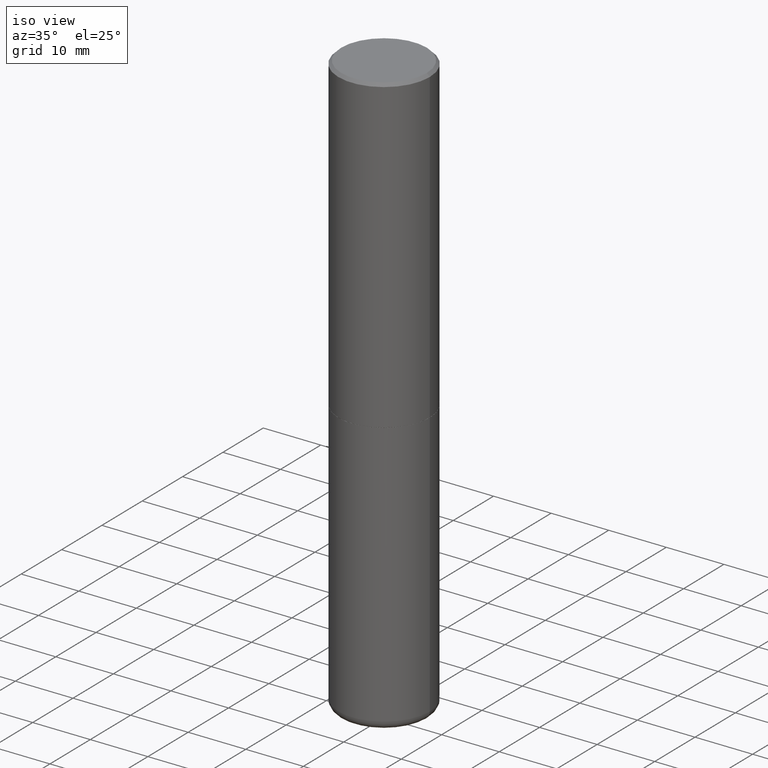
[diagram: clean part render]
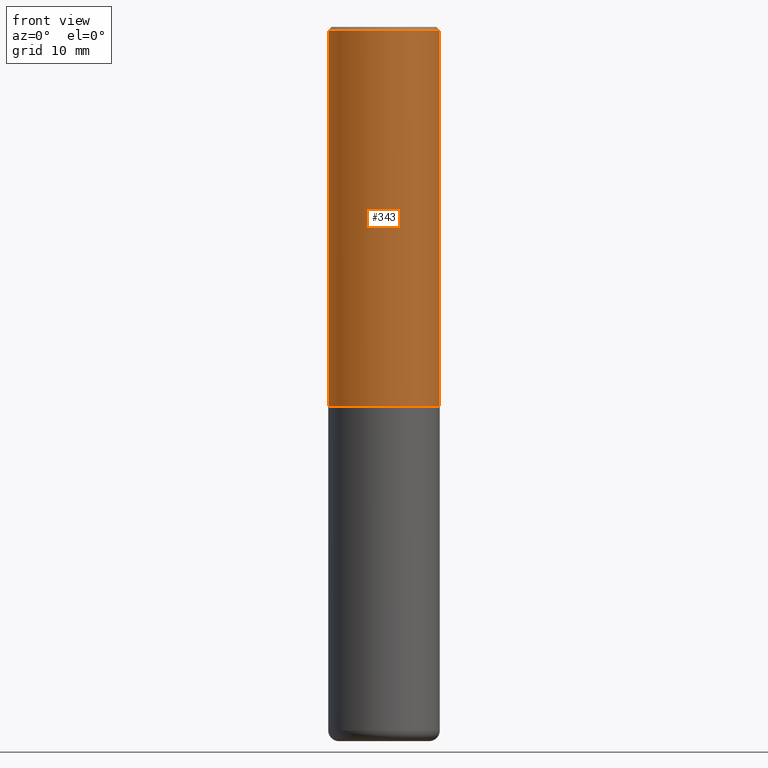
[diagram: tour spotlight — one face highlighted and labeled with its STEP entity id]
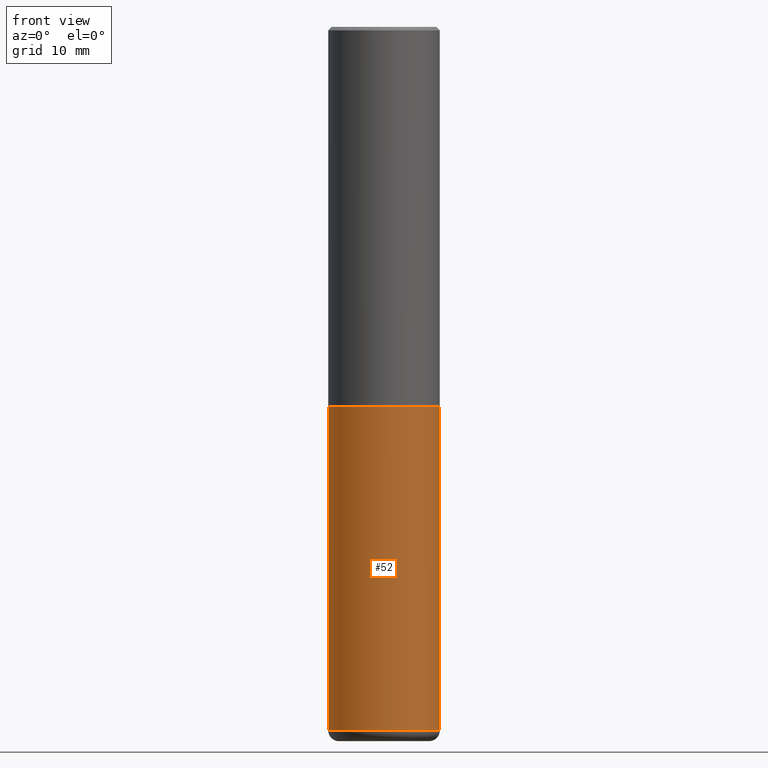
[diagram: tour spotlight — one face highlighted and labeled with its STEP entity id]
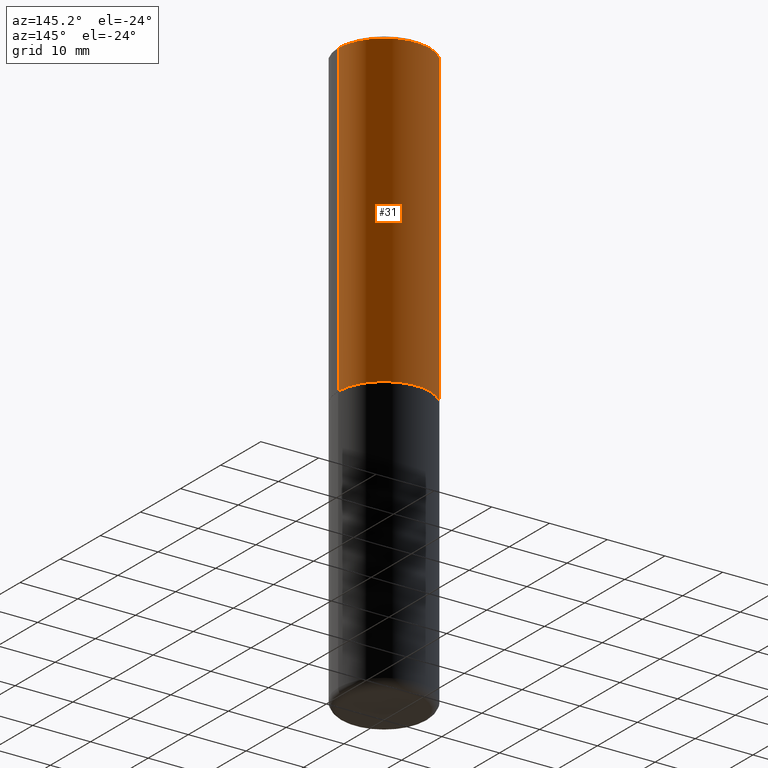
[diagram: tour spotlight — one face highlighted and labeled with its STEP entity id]
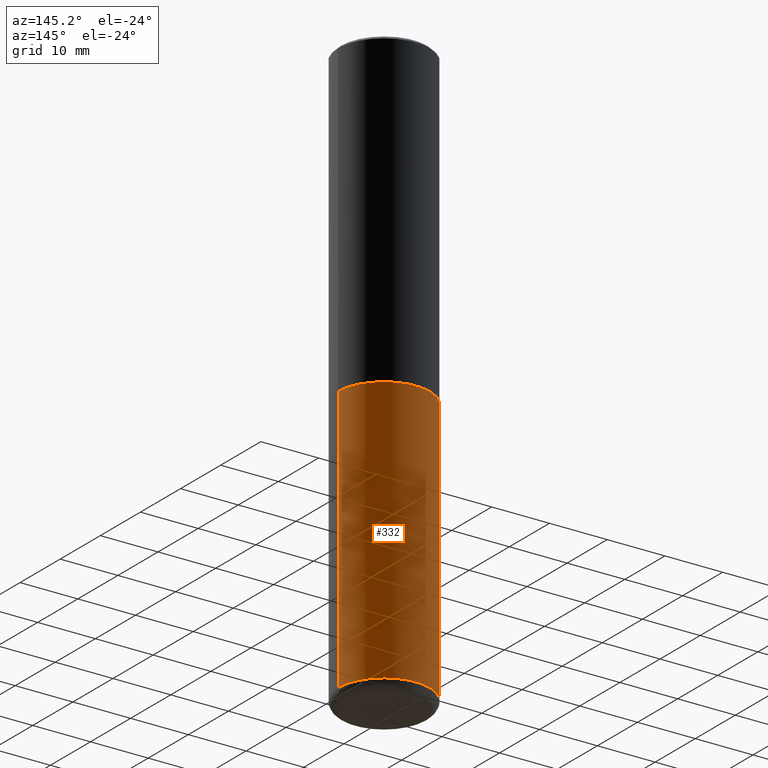
[diagram: tour spotlight — one face highlighted and labeled with its STEP entity id]
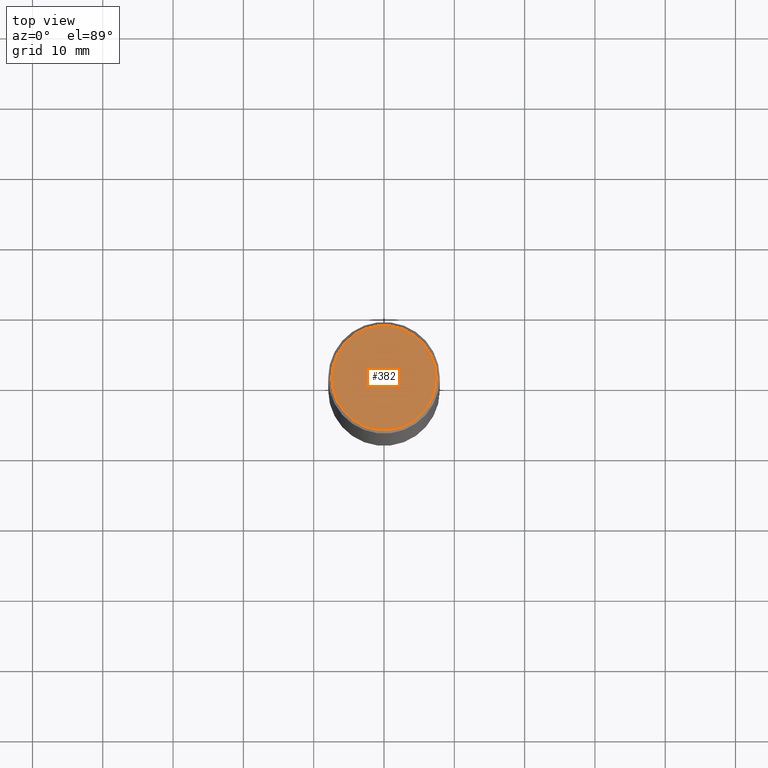
[diagram: tour spotlight — one face highlighted and labeled with its STEP entity id]
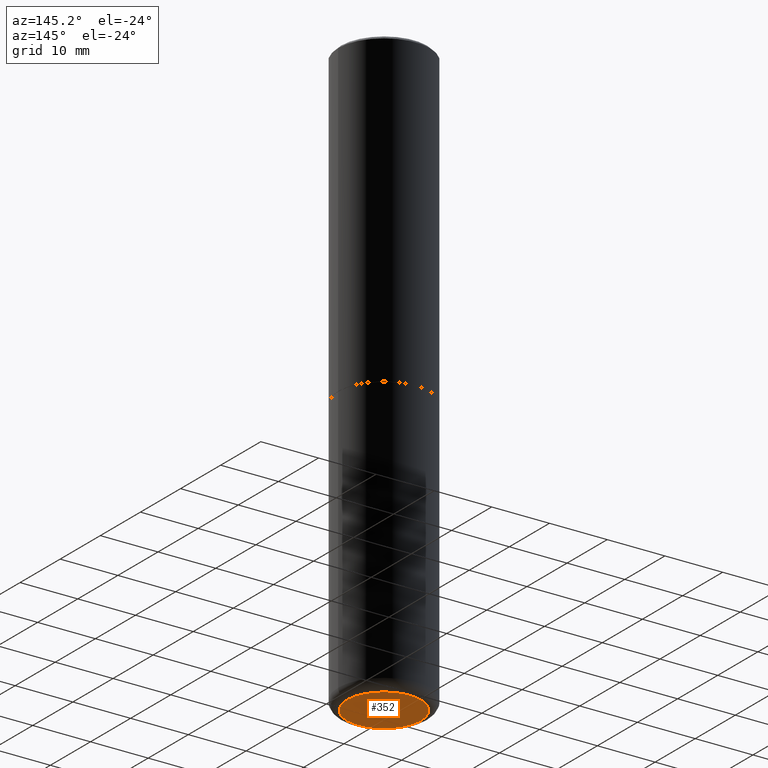
[diagram: tour spotlight — one face highlighted and labeled with its STEP entity id]
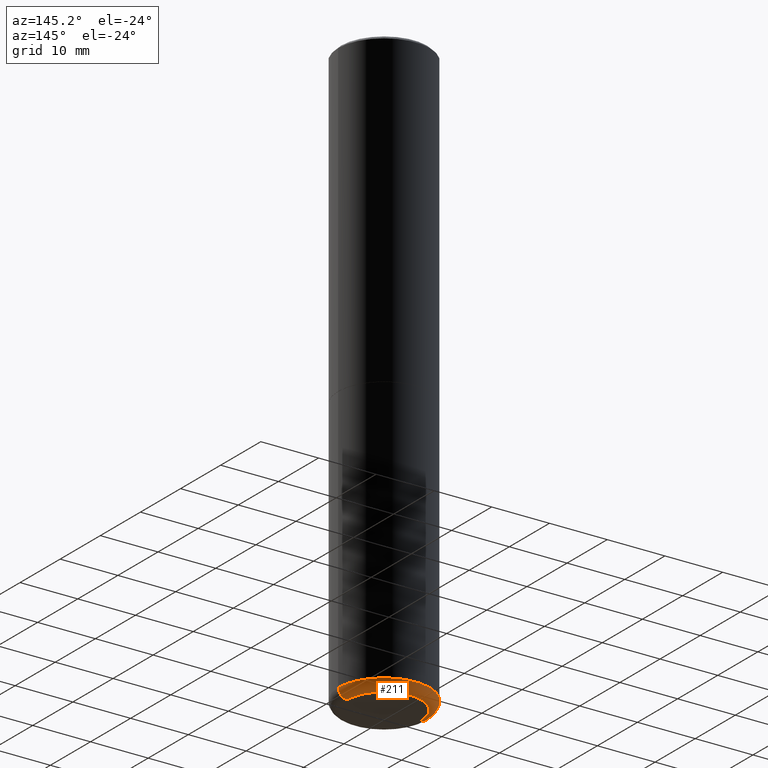
[diagram: tour spotlight — one face highlighted and labeled with its STEP entity id]
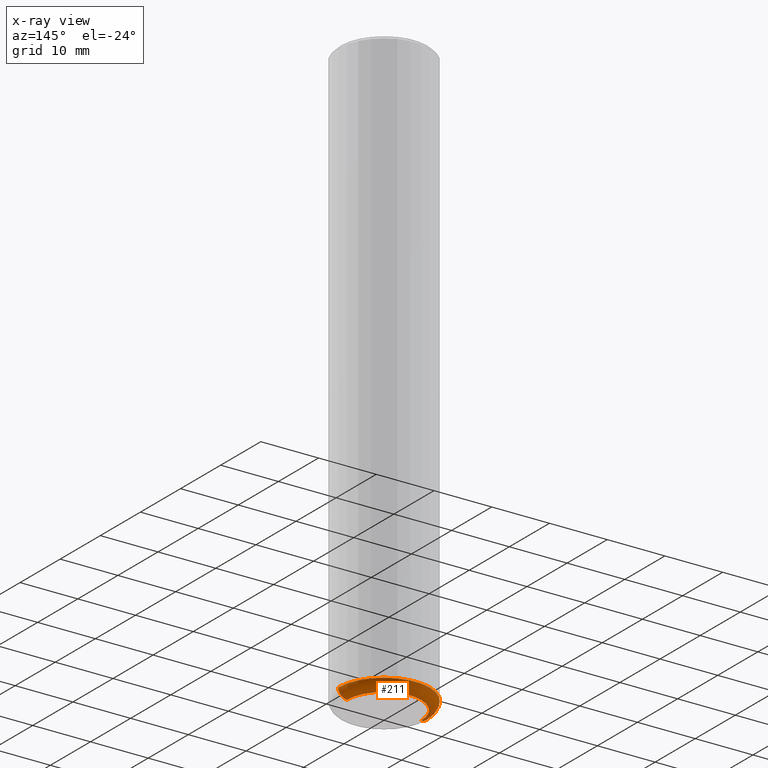
[diagram: x-ray of the same camera — body ghosted, this tour face saturated]
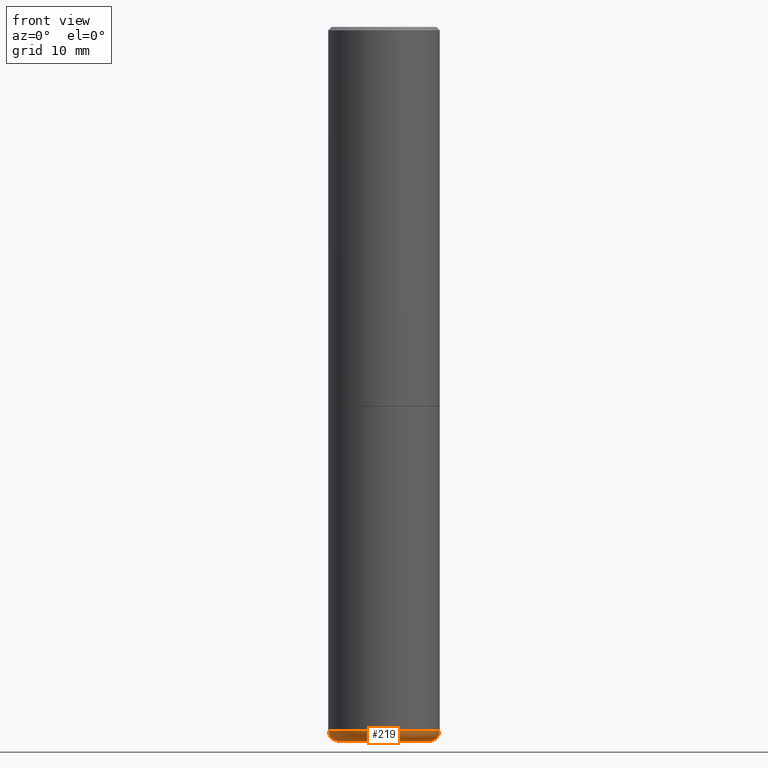
[diagram: tour spotlight — one face highlighted and labeled with its STEP entity id]
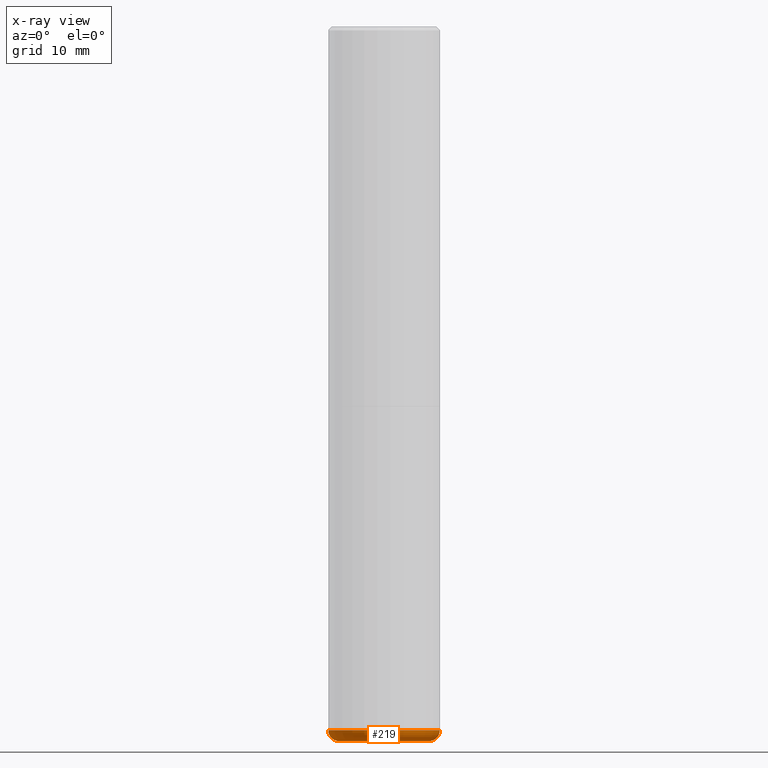
[diagram: x-ray of the same camera — body ghosted, this tour face saturated]
A machine part: a face-by-face anatomy tour. The part has 14 B-rep faces; the first image is the clean iso view, then the 8 largest visible faces are spotlighted one at a time (largest first), each with its STEP entity span.

Face 1 — front view, entity #343. In plain terms, the highlighted cylindrical surface (partial cylindrical patch) has radius 7.9375 mm, axis along (-0, 0, 1).
Definition (entity closure, byte-faithful):
#1 = EDGE_CURVE ( 'NONE', #283, #264, #153, .T. ) ;
#49 = CARTESIAN_POINT ( 'NONE',  ( 4.890937612370289799E-31, -6.982962677686315028E-17, -0.02000000000000006981 ) ) ;
#51 = DIRECTION ( 'NONE',  ( -2.445468806185136597E-29, 3.491481338843145583E-15, 1.000000000000000000 ) ) ;
#54 = CARTESIAN_POINT ( 'NONE',  ( 0.3125000000000002776, -9.598082200479802119E-15, -2.123999999999999666 ) ) ;
#55 = CARTESIAN_POINT ( 'NONE',  ( 5.194175744337229665E-29, -7.415906363702840616E-15, -2.123999999999999666 ) ) ;
#63 = DIRECTION ( 'NONE',  ( -2.445468806185136597E-29, 3.491481338843145583E-15, 1.000000000000000000 ) ) ;
#75 = AXIS2_PLACEMENT_3D ( 'NONE', #203, #51, #142 ) ;
#77 = AXIS2_PLACEMENT_3D ( 'NONE', #55, #63, #251 ) ;
#86 = VECTOR ( 'NONE', #385, 39.37007874015748143 ) ;
#88 = DIRECTION ( 'NONE',  ( 1.000000000000000000, -6.982962677686266711E-15, 0.000000000000000000 ) ) ;
#90 = CARTESIAN_POINT ( 'NONE',  ( 0.3125000000000001665, -2.182175836776959530E-15, 1.523805242436230636E-29 ) ) ;
#96 = VECTOR ( 'NONE', #306, 39.37007874015748143 ) ;
#117 = ORIENTED_EDGE ( 'NONE', *, *, #286, .F. ) ;
#121 = LINE ( 'NONE', #152, #86 ) ;
#142 = DIRECTION ( 'NONE',  ( 1.000000000000000000, -6.982962677686266711E-15, 4.876176775795935232E-29 ) ) ;
#152 = CARTESIAN_POINT ( 'NONE',  ( -0.3125000000000001665, 2.220446049250314264E-15, -1.537167215704658792E-29 ) ) ;
#153 = CIRCLE ( 'NONE', #77, 0.3125000000000002776 ) ;
#167 = VERTEX_POINT ( 'NONE', #260 ) ;
#181 = ORIENTED_EDGE ( 'NONE', *, *, #1, .T. ) ;
#203 = CARTESIAN_POINT ( 'NONE',  ( 0.000000000000000000, 0.000000000000000000, 0.000000000000000000 ) ) ;
#251 = DIRECTION ( 'NONE',  ( 1.000000000000000000, -6.982962677686269077E-15, 0.000000000000000000 ) ) ;
#252 = CIRCLE ( 'NONE', #265, 0.3125000000000000000 ) ;
#260 = CARTESIAN_POINT ( 'NONE',  ( 0.3125000000000000000, -2.213735251080466911E-15, -0.02000000000000006981 ) ) ;
#264 = VERTEX_POINT ( 'NONE', #54 ) ;
#265 = AXIS2_PLACEMENT_3D ( 'NONE', #49, #289, #88 ) ;
#269 = VERTEX_POINT ( 'NONE', #292 ) ;
#283 = VERTEX_POINT ( 'NONE', #305 ) ;
#286 = EDGE_CURVE ( 'NONE', #269, #167, #252, .T. ) ;
#289 = DIRECTION ( 'NONE',  ( -2.445468806185136597E-29, 3.491481338843145583E-15, 1.000000000000000000 ) ) ;
#292 = CARTESIAN_POINT ( 'NONE',  ( -0.3125000000000000000, 2.112346210000095443E-15, -0.02000000000000006981 ) ) ;
#305 = CARTESIAN_POINT ( 'NONE',  ( -0.3125000000000002776, -1.522421945989534932E-15, -2.123999999999999666 ) ) ;
#306 = DIRECTION ( 'NONE',  ( -2.445468806185136877E-29, 3.491481338843145188E-15, 1.000000000000000000 ) ) ;
#325 = EDGE_LOOP ( 'NONE', ( #395, #181, #408, #117 ) ) ;
#339 = FACE_OUTER_BOUND ( 'NONE', #325, .T. ) ;
#343 = ADVANCED_FACE ( 'NONE', ( #339 ), #367, .T. ) ;
#363 = EDGE_CURVE ( 'NONE', #283, #269, #121, .T. ) ;
#367 = CYLINDRICAL_SURFACE ( 'NONE', #75, 0.3125000000000001665 ) ;
#385 = DIRECTION ( 'NONE',  ( -2.445468806185136877E-29, 3.491481338843145188E-15, 1.000000000000000000 ) ) ;
#395 = ORIENTED_EDGE ( 'NONE', *, *, #363, .F. ) ;
#407 = LINE ( 'NONE', #90, #96 ) ;
#408 = ORIENTED_EDGE ( 'NONE', *, *, #416, .T. ) ;
#416 = EDGE_CURVE ( 'NONE', #264, #167, #407, .T. ) ;

Face 2 — front view, entity #52. In plain terms, the highlighted cylindrical surface (partial cylindrical patch) has radius 7.9375 mm, axis along (-0, 0, 1).
Definition (entity closure, byte-faithful):
#12 = ORIENTED_EDGE ( 'NONE', *, *, #35, .T. ) ;
#15 = VERTEX_POINT ( 'NONE', #119 ) ;
#17 = DIRECTION ( 'NONE',  ( 1.000000000000000000, -6.982962677686266711E-15, 4.876176775795936353E-29 ) ) ;
#24 = AXIS2_PLACEMENT_3D ( 'NONE', #225, #101, #371 ) ;
#30 = AXIS2_PLACEMENT_3D ( 'NONE', #58, #93, #378 ) ;
#34 = EDGE_CURVE ( 'NONE', #327, #224, #393, .T. ) ;
#35 = EDGE_CURVE ( 'NONE', #15, #224, #208, .T. ) ;
#39 = VERTEX_POINT ( 'NONE', #157 ) ;
#52 = ADVANCED_FACE ( 'NONE', ( #110 ), #102, .T. ) ;
#58 = CARTESIAN_POINT ( 'NONE',  ( 5.196621213143415268E-29, -7.419397845041683624E-15, -2.125000000000000000 ) ) ;
#62 = CARTESIAN_POINT ( 'NONE',  ( 0.3125000000000000000, -2.182175836776958347E-15, 1.523805242436230075E-29 ) ) ;
#70 = DIRECTION ( 'NONE',  ( -2.445468806185136877E-29, 3.491481338843145188E-15, 1.000000000000000000 ) ) ;
#89 = DIRECTION ( 'NONE',  ( -2.445468806185136877E-29, 3.491481338843145188E-15, 1.000000000000000000 ) ) ;
#93 = DIRECTION ( 'NONE',  ( -2.445468806185136597E-29, 3.491481338843145583E-15, 1.000000000000000000 ) ) ;
#101 = DIRECTION ( 'NONE',  ( -2.445468806185136597E-29, 3.491481338843145583E-15, 1.000000000000000000 ) ) ;
#102 = CYLINDRICAL_SURFACE ( 'NONE', #404, 0.3125000000000000000 ) ;
#110 = FACE_OUTER_BOUND ( 'NONE', #362, .T. ) ;
#119 = CARTESIAN_POINT ( 'NONE',  ( 0.3125000000000001665, -1.593861231181895394E-14, -3.939999999999999947 ) ) ;
#157 = CARTESIAN_POINT ( 'NONE',  ( -0.3125000000000001665, -1.153599042579167936E-14, -3.939999999999999947 ) ) ;
#163 = CARTESIAN_POINT ( 'NONE',  ( -0.3125000000000000000, 2.220446049250313081E-15, -1.537167215704658232E-29 ) ) ;
#176 = LINE ( 'NONE', #163, #387 ) ;
#194 = CIRCLE ( 'NONE', #24, 0.3125000000000000000 ) ;
#201 = CARTESIAN_POINT ( 'NONE',  ( 0.3125000000000000000, -9.601573681818641971E-15, -2.125000000000000000 ) ) ;
#207 = ORIENTED_EDGE ( 'NONE', *, *, #254, .T. ) ;
#208 = LINE ( 'NONE', #62, #257 ) ;
#224 = VERTEX_POINT ( 'NONE', #201 ) ;
#225 = CARTESIAN_POINT ( 'NONE',  ( 9.635147096369438236E-29, -1.375643647504199401E-14, -3.939999999999999947 ) ) ;
#254 = EDGE_CURVE ( 'NONE', #39, #15, #194, .T. ) ;
#257 = VECTOR ( 'NONE', #70, 39.37007874015748143 ) ;
#273 = EDGE_CURVE ( 'NONE', #39, #327, #176, .T. ) ;
#296 = ORIENTED_EDGE ( 'NONE', *, *, #34, .F. ) ;
#308 = CARTESIAN_POINT ( 'NONE',  ( -0.3125000000000000000, -8.367471110791524949E-15, -2.125000000000000000 ) ) ;
#322 = CARTESIAN_POINT ( 'NONE',  ( 0.000000000000000000, 0.000000000000000000, 0.000000000000000000 ) ) ;
#327 = VERTEX_POINT ( 'NONE', #308 ) ;
#353 = DIRECTION ( 'NONE',  ( -2.445468806185136597E-29, 3.491481338843145583E-15, 1.000000000000000000 ) ) ;
#362 = EDGE_LOOP ( 'NONE', ( #401, #207, #12, #296 ) ) ;
#371 = DIRECTION ( 'NONE',  ( 1.000000000000000000, -6.982962677686269077E-15, 0.000000000000000000 ) ) ;
#378 = DIRECTION ( 'NONE',  ( 1.000000000000000000, -6.982962677686269077E-15, 0.000000000000000000 ) ) ;
#387 = VECTOR ( 'NONE', #89, 39.37007874015748143 ) ;
#393 = CIRCLE ( 'NONE', #30, 0.3125000000000000000 ) ;
#401 = ORIENTED_EDGE ( 'NONE', *, *, #273, .F. ) ;
#404 = AXIS2_PLACEMENT_3D ( 'NONE', #322, #353, #17 ) ;

Face 3 — auxiliary view, entity #31. In plain terms, the highlighted cylindrical surface (partial cylindrical patch) has radius 7.9375 mm, axis along (-0, 0, 1).
Definition (entity closure, byte-faithful):
#23 = FACE_OUTER_BOUND ( 'NONE', #43, .T. ) ;
#29 = CIRCLE ( 'NONE', #179, 0.3125000000000000000 ) ;
#31 = ADVANCED_FACE ( 'NONE', ( #23 ), #178, .T. ) ;
#43 = EDGE_LOOP ( 'NONE', ( #348, #197, #304, #168 ) ) ;
#54 = CARTESIAN_POINT ( 'NONE',  ( 0.3125000000000002776, -9.598082200479802119E-15, -2.123999999999999666 ) ) ;
#57 = DIRECTION ( 'NONE',  ( 1.000000000000000000, -6.982962677686266711E-15, 0.000000000000000000 ) ) ;
#86 = VECTOR ( 'NONE', #385, 39.37007874015748143 ) ;
#90 = CARTESIAN_POINT ( 'NONE',  ( 0.3125000000000001665, -2.182175836776959530E-15, 1.523805242436230636E-29 ) ) ;
#95 = CARTESIAN_POINT ( 'NONE',  ( 5.194175744337229665E-29, -7.415906363702840616E-15, -2.123999999999999666 ) ) ;
#96 = VECTOR ( 'NONE', #306, 39.37007874015748143 ) ;
#121 = LINE ( 'NONE', #152, #86 ) ;
#152 = CARTESIAN_POINT ( 'NONE',  ( -0.3125000000000001665, 2.220446049250314264E-15, -1.537167215704658792E-29 ) ) ;
#167 = VERTEX_POINT ( 'NONE', #260 ) ;
#168 = ORIENTED_EDGE ( 'NONE', *, *, #416, .F. ) ;
#178 = CYLINDRICAL_SURFACE ( 'NONE', #415, 0.3125000000000001665 ) ;
#179 = AXIS2_PLACEMENT_3D ( 'NONE', #414, #342, #57 ) ;
#192 = DIRECTION ( 'NONE',  ( 1.000000000000000000, -6.982962677686269077E-15, 0.000000000000000000 ) ) ;
#197 = ORIENTED_EDGE ( 'NONE', *, *, #363, .T. ) ;
#204 = EDGE_CURVE ( 'NONE', #264, #283, #284, .T. ) ;
#245 = DIRECTION ( 'NONE',  ( -2.445468806185136597E-29, 3.491481338843145583E-15, 1.000000000000000000 ) ) ;
#260 = CARTESIAN_POINT ( 'NONE',  ( 0.3125000000000000000, -2.213735251080466911E-15, -0.02000000000000006981 ) ) ;
#264 = VERTEX_POINT ( 'NONE', #54 ) ;
#269 = VERTEX_POINT ( 'NONE', #292 ) ;
#283 = VERTEX_POINT ( 'NONE', #305 ) ;
#284 = CIRCLE ( 'NONE', #402, 0.3125000000000002776 ) ;
#292 = CARTESIAN_POINT ( 'NONE',  ( -0.3125000000000000000, 2.112346210000095443E-15, -0.02000000000000006981 ) ) ;
#304 = ORIENTED_EDGE ( 'NONE', *, *, #315, .F. ) ;
#305 = CARTESIAN_POINT ( 'NONE',  ( -0.3125000000000002776, -1.522421945989534932E-15, -2.123999999999999666 ) ) ;
#306 = DIRECTION ( 'NONE',  ( -2.445468806185136877E-29, 3.491481338843145188E-15, 1.000000000000000000 ) ) ;
#315 = EDGE_CURVE ( 'NONE', #167, #269, #29, .T. ) ;
#321 = DIRECTION ( 'NONE',  ( -2.445468806185136597E-29, 3.491481338843145583E-15, 1.000000000000000000 ) ) ;
#342 = DIRECTION ( 'NONE',  ( -2.445468806185136597E-29, 3.491481338843145583E-15, 1.000000000000000000 ) ) ;
#344 = DIRECTION ( 'NONE',  ( 1.000000000000000000, -6.982962677686266711E-15, 4.876176775795935232E-29 ) ) ;
#348 = ORIENTED_EDGE ( 'NONE', *, *, #204, .T. ) ;
#363 = EDGE_CURVE ( 'NONE', #283, #269, #121, .T. ) ;
#381 = CARTESIAN_POINT ( 'NONE',  ( 0.000000000000000000, 0.000000000000000000, 0.000000000000000000 ) ) ;
#385 = DIRECTION ( 'NONE',  ( -2.445468806185136877E-29, 3.491481338843145188E-15, 1.000000000000000000 ) ) ;
#402 = AXIS2_PLACEMENT_3D ( 'NONE', #95, #321, #192 ) ;
#407 = LINE ( 'NONE', #90, #96 ) ;
#414 = CARTESIAN_POINT ( 'NONE',  ( 4.890937612370289799E-31, -6.982962677686315028E-17, -0.02000000000000006981 ) ) ;
#415 = AXIS2_PLACEMENT_3D ( 'NONE', #381, #245, #344 ) ;
#416 = EDGE_CURVE ( 'NONE', #264, #167, #407, .T. ) ;

Face 4 — auxiliary view, entity #332. In plain terms, the highlighted cylindrical surface (partial cylindrical patch) has radius 7.9375 mm, axis along (-0, 0, 1).
Definition (entity closure, byte-faithful):
#6 = AXIS2_PLACEMENT_3D ( 'NONE', #221, #360, #166 ) ;
#15 = VERTEX_POINT ( 'NONE', #119 ) ;
#35 = EDGE_CURVE ( 'NONE', #15, #224, #208, .T. ) ;
#39 = VERTEX_POINT ( 'NONE', #157 ) ;
#46 = EDGE_CURVE ( 'NONE', #224, #327, #312, .T. ) ;
#62 = CARTESIAN_POINT ( 'NONE',  ( 0.3125000000000000000, -2.182175836776958347E-15, 1.523805242436230075E-29 ) ) ;
#70 = DIRECTION ( 'NONE',  ( -2.445468806185136877E-29, 3.491481338843145188E-15, 1.000000000000000000 ) ) ;
#79 = EDGE_LOOP ( 'NONE', ( #85, #293, #198, #122 ) ) ;
#85 = ORIENTED_EDGE ( 'NONE', *, *, #309, .T. ) ;
#89 = DIRECTION ( 'NONE',  ( -2.445468806185136877E-29, 3.491481338843145188E-15, 1.000000000000000000 ) ) ;
#119 = CARTESIAN_POINT ( 'NONE',  ( 0.3125000000000001665, -1.593861231181895394E-14, -3.939999999999999947 ) ) ;
#122 = ORIENTED_EDGE ( 'NONE', *, *, #35, .F. ) ;
#127 = AXIS2_PLACEMENT_3D ( 'NONE', #210, #232, #379 ) ;
#157 = CARTESIAN_POINT ( 'NONE',  ( -0.3125000000000001665, -1.153599042579167936E-14, -3.939999999999999947 ) ) ;
#163 = CARTESIAN_POINT ( 'NONE',  ( -0.3125000000000000000, 2.220446049250313081E-15, -1.537167215704658232E-29 ) ) ;
#166 = DIRECTION ( 'NONE',  ( 1.000000000000000000, -6.982962677686269077E-15, 0.000000000000000000 ) ) ;
#176 = LINE ( 'NONE', #163, #387 ) ;
#198 = ORIENTED_EDGE ( 'NONE', *, *, #46, .F. ) ;
#201 = CARTESIAN_POINT ( 'NONE',  ( 0.3125000000000000000, -9.601573681818641971E-15, -2.125000000000000000 ) ) ;
#208 = LINE ( 'NONE', #62, #257 ) ;
#210 = CARTESIAN_POINT ( 'NONE',  ( 0.000000000000000000, 0.000000000000000000, 0.000000000000000000 ) ) ;
#221 = CARTESIAN_POINT ( 'NONE',  ( 5.196621213143415268E-29, -7.419397845041683624E-15, -2.125000000000000000 ) ) ;
#224 = VERTEX_POINT ( 'NONE', #201 ) ;
#232 = DIRECTION ( 'NONE',  ( -2.445468806185136597E-29, 3.491481338843145583E-15, 1.000000000000000000 ) ) ;
#247 = FACE_OUTER_BOUND ( 'NONE', #79, .T. ) ;
#257 = VECTOR ( 'NONE', #70, 39.37007874015748143 ) ;
#261 = CARTESIAN_POINT ( 'NONE',  ( 9.635147096369438236E-29, -1.375643647504199401E-14, -3.939999999999999947 ) ) ;
#270 = CYLINDRICAL_SURFACE ( 'NONE', #127, 0.3125000000000000000 ) ;
#273 = EDGE_CURVE ( 'NONE', #39, #327, #176, .T. ) ;
#274 = CIRCLE ( 'NONE', #380, 0.3125000000000000000 ) ;
#275 = DIRECTION ( 'NONE',  ( 1.000000000000000000, -6.982962677686269077E-15, 0.000000000000000000 ) ) ;
#293 = ORIENTED_EDGE ( 'NONE', *, *, #273, .T. ) ;
#308 = CARTESIAN_POINT ( 'NONE',  ( -0.3125000000000000000, -8.367471110791524949E-15, -2.125000000000000000 ) ) ;
#309 = EDGE_CURVE ( 'NONE', #15, #39, #274, .T. ) ;
#312 = CIRCLE ( 'NONE', #6, 0.3125000000000000000 ) ;
#327 = VERTEX_POINT ( 'NONE', #308 ) ;
#332 = ADVANCED_FACE ( 'NONE', ( #247 ), #270, .T. ) ;
#340 = DIRECTION ( 'NONE',  ( -2.445468806185136597E-29, 3.491481338843145583E-15, 1.000000000000000000 ) ) ;
#360 = DIRECTION ( 'NONE',  ( -2.445468806185136597E-29, 3.491481338843145583E-15, 1.000000000000000000 ) ) ;
#379 = DIRECTION ( 'NONE',  ( 1.000000000000000000, -6.982962677686266711E-15, 4.876176775795936353E-29 ) ) ;
#380 = AXIS2_PLACEMENT_3D ( 'NONE', #261, #340, #275 ) ;
#387 = VECTOR ( 'NONE', #89, 39.37007874015748143 ) ;

Face 5 — top view, entity #382. In plain terms, the highlighted planar face has unit normal (0, -0, -1).
Definition (entity closure, byte-faithful):
#9 = EDGE_LOOP ( 'NONE', ( #99, #191 ) ) ;
#13 = CARTESIAN_POINT ( 'NONE',  ( -0.2925000000000002043, 2.077431396611664583E-15, -2.006200870347337854E-16 ) ) ;
#48 = DIRECTION ( 'NONE',  ( 1.000000000000000000, -6.982962677686266711E-15, 4.873475059489872853E-29 ) ) ;
#73 = VERTEX_POINT ( 'NONE', #13 ) ;
#82 = PLANE ( 'NONE',  #156 ) ;
#84 = CARTESIAN_POINT ( 'NONE',  ( 4.906101647375534649E-45, -7.004612900788104277E-31, -2.006200870347193887E-16 ) ) ;
#97 = DIRECTION ( 'NONE',  ( -2.445468806185136597E-29, 3.491481338843145583E-15, 1.000000000000000000 ) ) ;
#99 = ORIENTED_EDGE ( 'NONE', *, *, #155, .T. ) ;
#128 = CARTESIAN_POINT ( 'NONE',  ( 4.906101647375534649E-45, -7.004612900788104277E-31, -2.006200870347193887E-16 ) ) ;
#130 = EDGE_CURVE ( 'NONE', #173, #73, #154, .T. ) ;
#154 = CIRCLE ( 'NONE', #318, 0.2925000000000002043 ) ;
#155 = EDGE_CURVE ( 'NONE', #73, #173, #243, .T. ) ;
#156 = AXIS2_PLACEMENT_3D ( 'NONE', #278, #285, #244 ) ;
#173 = VERTEX_POINT ( 'NONE', #396 ) ;
#188 = DIRECTION ( 'NONE',  ( 1.000000000000000000, -6.982962677686266711E-15, 4.873475059489872853E-29 ) ) ;
#191 = ORIENTED_EDGE ( 'NONE', *, *, #130, .T. ) ;
#243 = CIRCLE ( 'NONE', #350, 0.2925000000000002043 ) ;
#244 = DIRECTION ( 'NONE',  ( -1.000000000000000000, 6.982962677686265922E-15, -4.876176775795935793E-29 ) ) ;
#278 = CARTESIAN_POINT ( 'NONE',  ( 2.042516583223234117E-15, 0.2925000000000002043, -1.121568335128980438E-15 ) ) ;
#280 = FACE_OUTER_BOUND ( 'NONE', #9, .T. ) ;
#285 = DIRECTION ( 'NONE',  ( 2.438088387897960049E-29, -3.491481338843145188E-15, -1.000000000000000000 ) ) ;
#290 = DIRECTION ( 'NONE',  ( -2.445468806185136597E-29, 3.491481338843145583E-15, 1.000000000000000000 ) ) ;
#318 = AXIS2_PLACEMENT_3D ( 'NONE', #128, #290, #48 ) ;
#350 = AXIS2_PLACEMENT_3D ( 'NONE', #84, #97, #188 ) ;
#382 = ADVANCED_FACE ( 'NONE', ( #280 ), #82, .F. ) ;
#396 = CARTESIAN_POINT ( 'NONE',  ( 0.2925000000000002043, -2.110215457714321114E-15, -2.006200870347048687E-16 ) ) ;

Face 6 — auxiliary view, entity #352. In plain terms, the highlighted planar face has unit normal (0, -0, -1).
Definition (entity closure, byte-faithful):
#10 = PLANE ( 'NONE',  #326 ) ;
#18 = ORIENTED_EDGE ( 'NONE', *, *, #323, .F. ) ;
#26 = VERTEX_POINT ( 'NONE', #307 ) ;
#33 = AXIS2_PLACEMENT_3D ( 'NONE', #356, #74, #195 ) ;
#36 = CARTESIAN_POINT ( 'NONE',  ( -0.2525000000000000022, -1.185389768668500455E-14, -4.000000000000000888 ) ) ;
#47 = CARTESIAN_POINT ( 'NONE',  ( 9.781875224740547508E-29, -1.396592535537258391E-14, -4.000000000000000888 ) ) ;
#74 = DIRECTION ( 'NONE',  ( -2.445468806185136597E-29, 3.491481338843145583E-15, 1.000000000000000000 ) ) ;
#115 = EDGE_LOOP ( 'NONE', ( #338, #18 ) ) ;
#180 = EDGE_CURVE ( 'NONE', #26, #259, #345, .T. ) ;
#193 = FACE_OUTER_BOUND ( 'NONE', #115, .T. ) ;
#195 = DIRECTION ( 'NONE',  ( 1.000000000000000000, -6.982962677686269866E-15, 0.000000000000000000 ) ) ;
#216 = DIRECTION ( 'NONE',  ( -1.000000000000000000, 6.982962677686265922E-15, -4.876176775795935793E-29 ) ) ;
#239 = DIRECTION ( 'NONE',  ( 1.000000000000000000, -6.982962677686269866E-15, 0.000000000000000000 ) ) ;
#259 = VERTEX_POINT ( 'NONE', #36 ) ;
#298 = CIRCLE ( 'NONE', #311, 0.2525000000000000022 ) ;
#307 = CARTESIAN_POINT ( 'NONE',  ( 0.2525000000000000022, -1.572912343148836720E-14, -4.000000000000000888 ) ) ;
#311 = AXIS2_PLACEMENT_3D ( 'NONE', #47, #376, #239 ) ;
#314 = DIRECTION ( 'NONE',  ( 2.438088387897960049E-29, -3.491481338843145188E-15, -1.000000000000000000 ) ) ;
#323 = EDGE_CURVE ( 'NONE', #259, #26, #298, .T. ) ;
#326 = AXIS2_PLACEMENT_3D ( 'NONE', #410, #314, #216 ) ;
#338 = ORIENTED_EDGE ( 'NONE', *, *, #180, .F. ) ;
#345 = CIRCLE ( 'NONE', #33, 0.2525000000000000022 ) ;
#352 = ADVANCED_FACE ( 'NONE', ( #193 ), #10, .T. ) ;
#356 = CARTESIAN_POINT ( 'NONE',  ( 9.781875224740547508E-29, -1.396592535537258391E-14, -4.000000000000000888 ) ) ;
#376 = DIRECTION ( 'NONE',  ( -2.445468806185136597E-29, 3.491481338843145583E-15, 1.000000000000000000 ) ) ;
#410 = CARTESIAN_POINT ( 'NONE',  ( 3.737869654564021101E-29, -2.262128533529896139E-14, -4.000000000000000000 ) ) ;

Face 7 — auxiliary view, entity #211. An x-ray twin of the same camera follows (body ghosted, this face saturated) — the face is partly hidden behind the body. In plain terms, the highlighted toroidal blend (fillet) surface has major radius 6.4135 mm and minor (blend) radius 1.524 mm.
Definition (entity closure, byte-faithful):
#5 = TOROIDAL_SURFACE ( 'NONE', #161, 0.2525000000000000022, 0.06000000000000023370 ) ;
#15 = VERTEX_POINT ( 'NONE', #119 ) ;
#25 = DIRECTION ( 'NONE',  ( 7.105427357601001859E-15, 1.000000000000000000, -3.491481338843145583E-15 ) ) ;
#26 = VERTEX_POINT ( 'NONE', #307 ) ;
#33 = AXIS2_PLACEMENT_3D ( 'NONE', #356, #74, #195 ) ;
#36 = CARTESIAN_POINT ( 'NONE',  ( -0.2525000000000000022, -1.185389768668500455E-14, -4.000000000000000888 ) ) ;
#39 = VERTEX_POINT ( 'NONE', #157 ) ;
#50 = EDGE_LOOP ( 'NONE', ( #262, #138, #227, #226 ) ) ;
#74 = DIRECTION ( 'NONE',  ( -2.445468806185136597E-29, 3.491481338843145583E-15, 1.000000000000000000 ) ) ;
#119 = CARTESIAN_POINT ( 'NONE',  ( 0.3125000000000001665, -1.593861231181895394E-14, -3.939999999999999947 ) ) ;
#123 = DIRECTION ( 'NONE',  ( -1.000000000000000000, 7.105427357600997914E-15, 0.000000000000000000 ) ) ;
#129 = DIRECTION ( 'NONE',  ( 1.000000000000000000, -6.982962677686264344E-15, 4.883557194083112340E-29 ) ) ;
#138 = ORIENTED_EDGE ( 'NONE', *, *, #184, .T. ) ;
#157 = CARTESIAN_POINT ( 'NONE',  ( -0.3125000000000001665, -1.153599042579167936E-14, -3.939999999999999947 ) ) ;
#161 = AXIS2_PLACEMENT_3D ( 'NONE', #271, #392, #129 ) ;
#170 = CARTESIAN_POINT ( 'NONE',  ( 0.2525000000000000022, -1.551963455115777730E-14, -3.939999999999999947 ) ) ;
#180 = EDGE_CURVE ( 'NONE', #26, #259, #345, .T. ) ;
#182 = AXIS2_PLACEMENT_3D ( 'NONE', #294, #25, #123 ) ;
#183 = CIRCLE ( 'NONE', #182, 0.06000000000000021289 ) ;
#184 = EDGE_CURVE ( 'NONE', #259, #39, #183, .T. ) ;
#195 = DIRECTION ( 'NONE',  ( 1.000000000000000000, -6.982962677686269866E-15, 0.000000000000000000 ) ) ;
#211 = ADVANCED_FACE ( 'NONE', ( #255 ), #5, .T. ) ;
#226 = ORIENTED_EDGE ( 'NONE', *, *, #388, .F. ) ;
#227 = ORIENTED_EDGE ( 'NONE', *, *, #309, .F. ) ;
#229 = DIRECTION ( 'NONE',  ( -6.982962677686266711E-15, -1.000000000000000000, 3.491481338843145583E-15 ) ) ;
#255 = FACE_OUTER_BOUND ( 'NONE', #50, .T. ) ;
#259 = VERTEX_POINT ( 'NONE', #36 ) ;
#261 = CARTESIAN_POINT ( 'NONE',  ( 9.635147096369438236E-29, -1.375643647504199401E-14, -3.939999999999999947 ) ) ;
#262 = ORIENTED_EDGE ( 'NONE', *, *, #180, .T. ) ;
#271 = CARTESIAN_POINT ( 'NONE',  ( 9.635147096369438236E-29, -1.375643647504199401E-14, -3.939999999999999947 ) ) ;
#274 = CIRCLE ( 'NONE', #380, 0.3125000000000000000 ) ;
#275 = DIRECTION ( 'NONE',  ( 1.000000000000000000, -6.982962677686269077E-15, 0.000000000000000000 ) ) ;
#282 = CIRCLE ( 'NONE', #413, 0.06000000000000021289 ) ;
#294 = CARTESIAN_POINT ( 'NONE',  ( -0.2525000000000000022, -1.196231606724773985E-14, -3.939999999999999947 ) ) ;
#307 = CARTESIAN_POINT ( 'NONE',  ( 0.2525000000000000022, -1.572912343148836720E-14, -4.000000000000000888 ) ) ;
#309 = EDGE_CURVE ( 'NONE', #15, #39, #274, .T. ) ;
#337 = DIRECTION ( 'NONE',  ( 1.000000000000000000, -6.982962677686275388E-15, 0.000000000000000000 ) ) ;
#340 = DIRECTION ( 'NONE',  ( -2.445468806185136597E-29, 3.491481338843145583E-15, 1.000000000000000000 ) ) ;
#345 = CIRCLE ( 'NONE', #33, 0.2525000000000000022 ) ;
#356 = CARTESIAN_POINT ( 'NONE',  ( 9.781875224740547508E-29, -1.396592535537258391E-14, -4.000000000000000888 ) ) ;
#380 = AXIS2_PLACEMENT_3D ( 'NONE', #261, #340, #275 ) ;
#388 = EDGE_CURVE ( 'NONE', #26, #15, #282, .T. ) ;
#392 = DIRECTION ( 'NONE',  ( -2.445468806185136597E-29, 3.491481338843145583E-15, 1.000000000000000000 ) ) ;
#413 = AXIS2_PLACEMENT_3D ( 'NONE', #170, #229, #337 ) ;

Face 8 — front view, entity #219. An x-ray twin of the same camera follows (body ghosted, this face saturated) — the face is partly hidden behind the body. In plain terms, the highlighted toroidal blend (fillet) surface has major radius 6.4135 mm and minor (blend) radius 1.524 mm.
Definition (entity closure, byte-faithful):
#15 = VERTEX_POINT ( 'NONE', #119 ) ;
#24 = AXIS2_PLACEMENT_3D ( 'NONE', #225, #101, #371 ) ;
#25 = DIRECTION ( 'NONE',  ( 7.105427357601001859E-15, 1.000000000000000000, -3.491481338843145583E-15 ) ) ;
#26 = VERTEX_POINT ( 'NONE', #307 ) ;
#36 = CARTESIAN_POINT ( 'NONE',  ( -0.2525000000000000022, -1.185389768668500455E-14, -4.000000000000000888 ) ) ;
#39 = VERTEX_POINT ( 'NONE', #157 ) ;
#47 = CARTESIAN_POINT ( 'NONE',  ( 9.781875224740547508E-29, -1.396592535537258391E-14, -4.000000000000000888 ) ) ;
#101 = DIRECTION ( 'NONE',  ( -2.445468806185136597E-29, 3.491481338843145583E-15, 1.000000000000000000 ) ) ;
#103 = AXIS2_PLACEMENT_3D ( 'NONE', #143, #160, #336 ) ;
#119 = CARTESIAN_POINT ( 'NONE',  ( 0.3125000000000001665, -1.593861231181895394E-14, -3.939999999999999947 ) ) ;
#123 = DIRECTION ( 'NONE',  ( -1.000000000000000000, 7.105427357600997914E-15, 0.000000000000000000 ) ) ;
#124 = TOROIDAL_SURFACE ( 'NONE', #103, 0.2525000000000000022, 0.06000000000000023370 ) ;
#133 = EDGE_LOOP ( 'NONE', ( #231, #295, #330, #355 ) ) ;
#143 = CARTESIAN_POINT ( 'NONE',  ( 9.635147096369438236E-29, -1.375643647504199401E-14, -3.939999999999999947 ) ) ;
#157 = CARTESIAN_POINT ( 'NONE',  ( -0.3125000000000001665, -1.153599042579167936E-14, -3.939999999999999947 ) ) ;
#160 = DIRECTION ( 'NONE',  ( -2.445468806185136597E-29, 3.491481338843145583E-15, 1.000000000000000000 ) ) ;
#170 = CARTESIAN_POINT ( 'NONE',  ( 0.2525000000000000022, -1.551963455115777730E-14, -3.939999999999999947 ) ) ;
#182 = AXIS2_PLACEMENT_3D ( 'NONE', #294, #25, #123 ) ;
#183 = CIRCLE ( 'NONE', #182, 0.06000000000000021289 ) ;
#184 = EDGE_CURVE ( 'NONE', #259, #39, #183, .T. ) ;
#194 = CIRCLE ( 'NONE', #24, 0.3125000000000000000 ) ;
#219 = ADVANCED_FACE ( 'NONE', ( #320 ), #124, .T. ) ;
#225 = CARTESIAN_POINT ( 'NONE',  ( 9.635147096369438236E-29, -1.375643647504199401E-14, -3.939999999999999947 ) ) ;
#229 = DIRECTION ( 'NONE',  ( -6.982962677686266711E-15, -1.000000000000000000, 3.491481338843145583E-15 ) ) ;
#231 = ORIENTED_EDGE ( 'NONE', *, *, #184, .F. ) ;
#239 = DIRECTION ( 'NONE',  ( 1.000000000000000000, -6.982962677686269866E-15, 0.000000000000000000 ) ) ;
#254 = EDGE_CURVE ( 'NONE', #39, #15, #194, .T. ) ;
#259 = VERTEX_POINT ( 'NONE', #36 ) ;
#282 = CIRCLE ( 'NONE', #413, 0.06000000000000021289 ) ;
#294 = CARTESIAN_POINT ( 'NONE',  ( -0.2525000000000000022, -1.196231606724773985E-14, -3.939999999999999947 ) ) ;
#295 = ORIENTED_EDGE ( 'NONE', *, *, #323, .T. ) ;
#298 = CIRCLE ( 'NONE', #311, 0.2525000000000000022 ) ;
#307 = CARTESIAN_POINT ( 'NONE',  ( 0.2525000000000000022, -1.572912343148836720E-14, -4.000000000000000888 ) ) ;
#311 = AXIS2_PLACEMENT_3D ( 'NONE', #47, #376, #239 ) ;
#320 = FACE_OUTER_BOUND ( 'NONE', #133, .T. ) ;
#323 = EDGE_CURVE ( 'NONE', #259, #26, #298, .T. ) ;
#330 = ORIENTED_EDGE ( 'NONE', *, *, #388, .T. ) ;
#336 = DIRECTION ( 'NONE',  ( 1.000000000000000000, -6.982962677686264344E-15, 4.883557194083112340E-29 ) ) ;
#337 = DIRECTION ( 'NONE',  ( 1.000000000000000000, -6.982962677686275388E-15, 0.000000000000000000 ) ) ;
#355 = ORIENTED_EDGE ( 'NONE', *, *, #254, .F. ) ;
#371 = DIRECTION ( 'NONE',  ( 1.000000000000000000, -6.982962677686269077E-15, 0.000000000000000000 ) ) ;
#376 = DIRECTION ( 'NONE',  ( -2.445468806185136597E-29, 3.491481338843145583E-15, 1.000000000000000000 ) ) ;
#388 = EDGE_CURVE ( 'NONE', #26, #15, #282, .T. ) ;
#413 = AXIS2_PLACEMENT_3D ( 'NONE', #170, #229, #337 ) ;